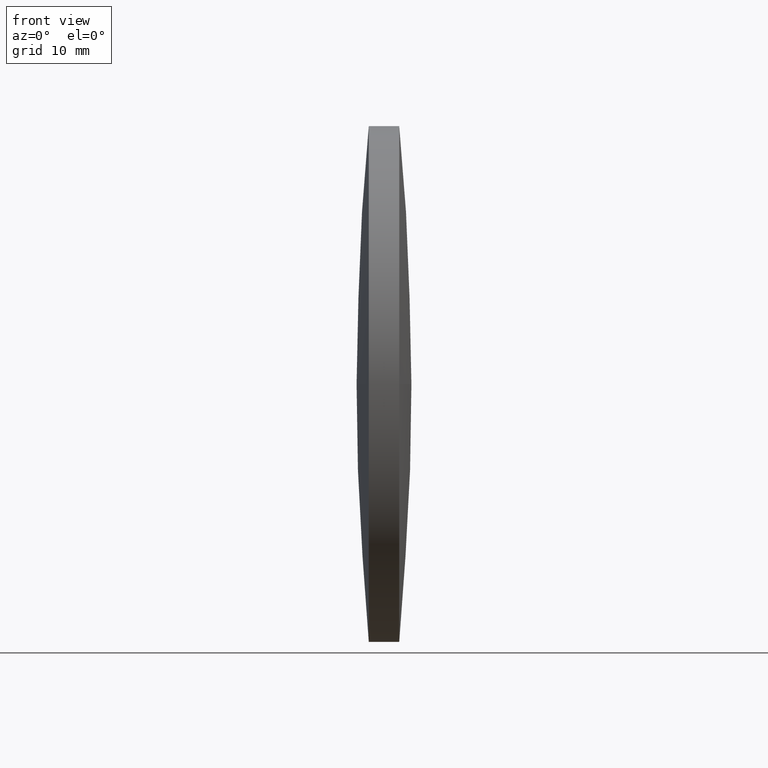
[diagram: clean part render]
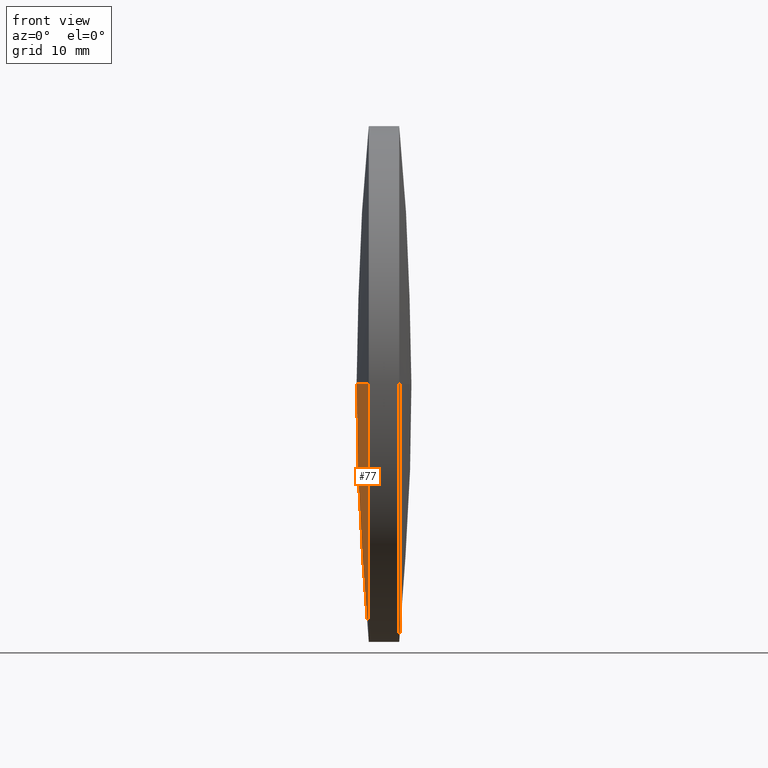
[diagram: same view with one face highlighted and labeled with its STEP entity id]
A machine part, front view. The second image highlights one B-rep face of the part: STEP entity #77.
In plain terms, the highlighted spherical surface has radius 269.424 mm.
Its self-contained STEP definition (entity closure, byte-faithful):
#15 = CARTESIAN_POINT ( 'NONE',  ( 171.4164086921822200, 97.23222604636956100, 0.0000000000000000000 ) ) ;
#16 = CIRCLE ( 'NONE', #227, 269.4236915733057500 ) ;
#17 = CARTESIAN_POINT ( 'NONE',  ( 439.6401316940594500, 97.23222604636900700, 0.0000000000000000000 ) ) ;
#23 = DIRECTION ( 'NONE',  ( -1.000000000000000000, -0.0000000000000000000, -0.0000000000000000000 ) ) ;
#25 = CIRCLE ( 'NONE', #260, 25.39999999999999100 ) ;
#26 = ORIENTED_EDGE ( 'NONE', *, *, #55, .F. ) ;
#34 = EDGE_CURVE ( 'NONE', #54, #309, #16, .T. ) ;
#38 = CARTESIAN_POINT ( 'NONE',  ( 439.6401316940594500, 97.23222604636900700, 0.0000000000000000000 ) ) ;
#41 = DIRECTION ( 'NONE',  ( 0.0000000000000000000, 1.224646799147353200E-016, -1.000000000000000000 ) ) ;
#50 = CARTESIAN_POINT ( 'NONE',  ( 170.2164401207537000, 97.23222604636902100, 0.0000000000000000000 ) ) ;
#54 = VERTEX_POINT ( 'NONE', #145 ) ;
#55 = EDGE_CURVE ( 'NONE', #241, #309, #337, .T. ) ;
#77 = ADVANCED_FACE ( 'NONE', ( #99 ), #263, .T. ) ;
#80 = EDGE_CURVE ( 'NONE', #225, #54, #303, .T. ) ;
#92 = ORIENTED_EDGE ( 'NONE', *, *, #34, .T. ) ;
#95 = DIRECTION ( 'NONE',  ( -0.0000000000000000000, 0.0000000000000000000, -1.000000000000000000 ) ) ;
#99 = FACE_OUTER_BOUND ( 'NONE', #317, .T. ) ;
#100 = DIRECTION ( 'NONE',  ( 1.000000000000000000, 0.0000000000000000000, 0.0000000000000000000 ) ) ;
#109 = AXIS2_PLACEMENT_3D ( 'NONE', #17, #95, #252 ) ;
#133 = CARTESIAN_POINT ( 'NONE',  ( 171.4164086921822200, 97.23222604636956100, -25.39999999999999100 ) ) ;
#145 = CARTESIAN_POINT ( 'NONE',  ( 171.4164086921822200, 71.83222604636910100, -3.110602869834266600E-015 ) ) ;
#148 = AXIS2_PLACEMENT_3D ( 'NONE', #15, #154, #206 ) ;
#154 = DIRECTION ( 'NONE',  ( -1.000000000000000000, -0.0000000000000000000, -0.0000000000000000000 ) ) ;
#186 = ORIENTED_EDGE ( 'NONE', *, *, #222, .T. ) ;
#187 = CARTESIAN_POINT ( 'NONE',  ( 171.4164086921822200, 97.23222604636956100, 0.0000000000000000000 ) ) ;
#206 = DIRECTION ( 'NONE',  ( 0.0000000000000000000, 0.0000000000000000000, 1.000000000000000000 ) ) ;
#211 = DIRECTION ( 'NONE',  ( 0.0000000000000000000, 0.0000000000000000000, 1.000000000000000000 ) ) ;
#222 = EDGE_CURVE ( 'NONE', #241, #225, #25, .T. ) ;
#223 = DIRECTION ( 'NONE',  ( 0.0000000000000000000, 1.000000000000000000, 1.224646799147353500E-016 ) ) ;
#225 = VERTEX_POINT ( 'NONE', #133 ) ;
#227 = AXIS2_PLACEMENT_3D ( 'NONE', #38, #41, #223 ) ;
#241 = VERTEX_POINT ( 'NONE', #313 ) ;
#244 = AXIS2_PLACEMENT_3D ( 'NONE', #334, #278, #100 ) ;
#252 = DIRECTION ( 'NONE',  ( 0.0000000000000000000, 1.000000000000000000, 0.0000000000000000000 ) ) ;
#260 = AXIS2_PLACEMENT_3D ( 'NONE', #187, #23, #211 ) ;
#263 = SPHERICAL_SURFACE ( 'NONE', #109, 269.4236915733057500 ) ;
#278 = DIRECTION ( 'NONE',  ( -0.0000000000000000000, 0.0000000000000000000, 1.000000000000000000 ) ) ;
#280 = ORIENTED_EDGE ( 'NONE', *, *, #80, .T. ) ;
#303 = CIRCLE ( 'NONE', #148, 25.39999999999999100 ) ;
#309 = VERTEX_POINT ( 'NONE', #50 ) ;
#313 = CARTESIAN_POINT ( 'NONE',  ( 171.4164086921822200, 122.6322260463694800, 0.0000000000000000000 ) ) ;
#317 = EDGE_LOOP ( 'NONE', ( #186, #280, #92, #26 ) ) ;
#334 = CARTESIAN_POINT ( 'NONE',  ( 439.6401316940594500, 97.23222604636900700, 0.0000000000000000000 ) ) ;
#337 = CIRCLE ( 'NONE', #244, 269.4236915733056900 ) ;